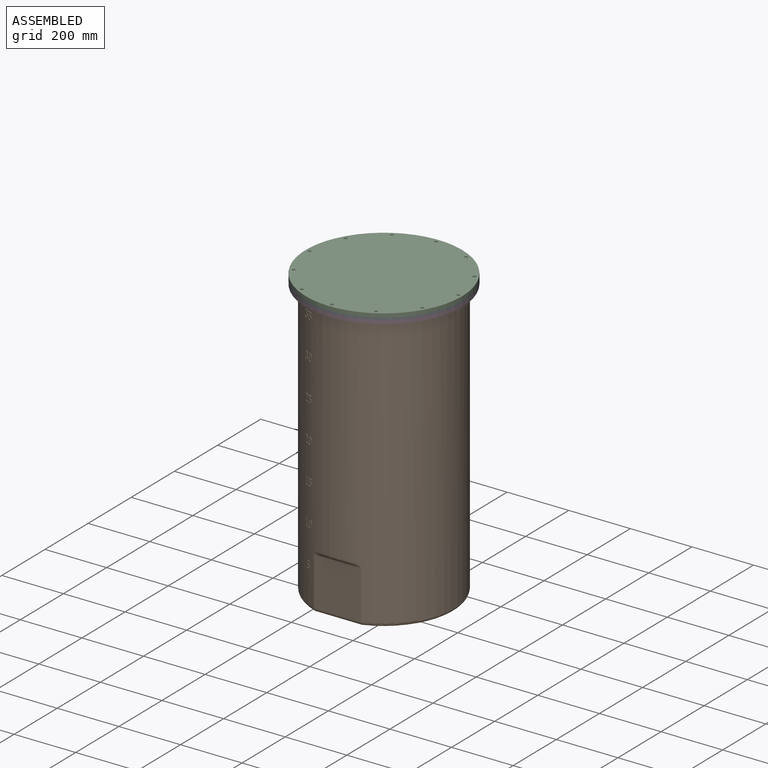
[diagram: assembled view]
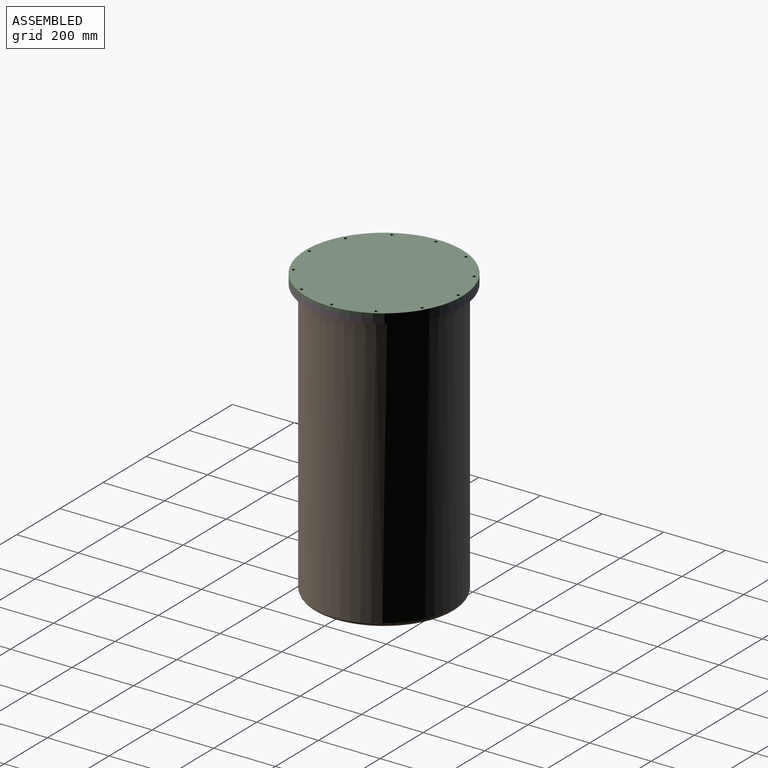
[diagram: assembled view, second angle]
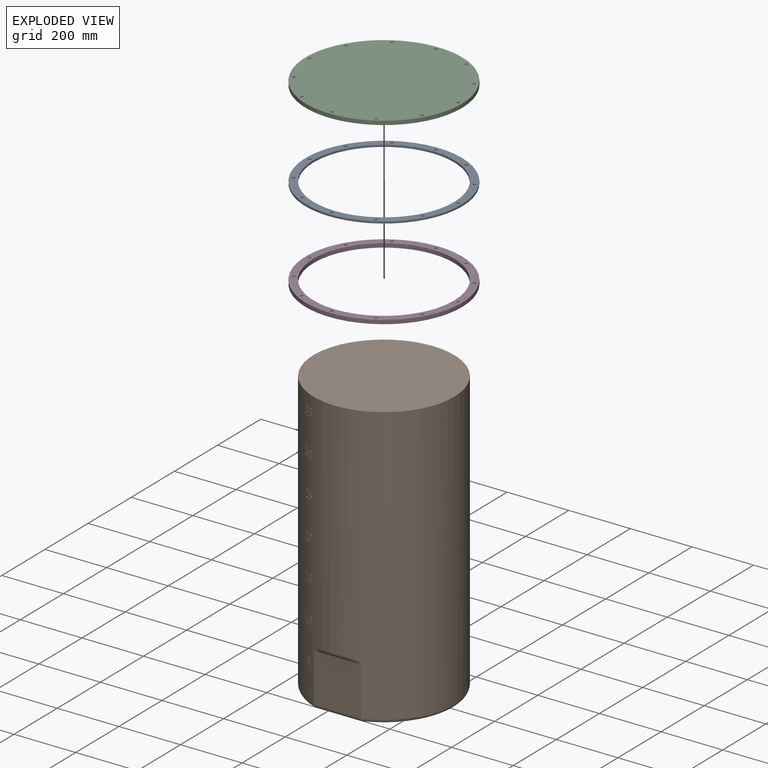
[diagram: exploded view]
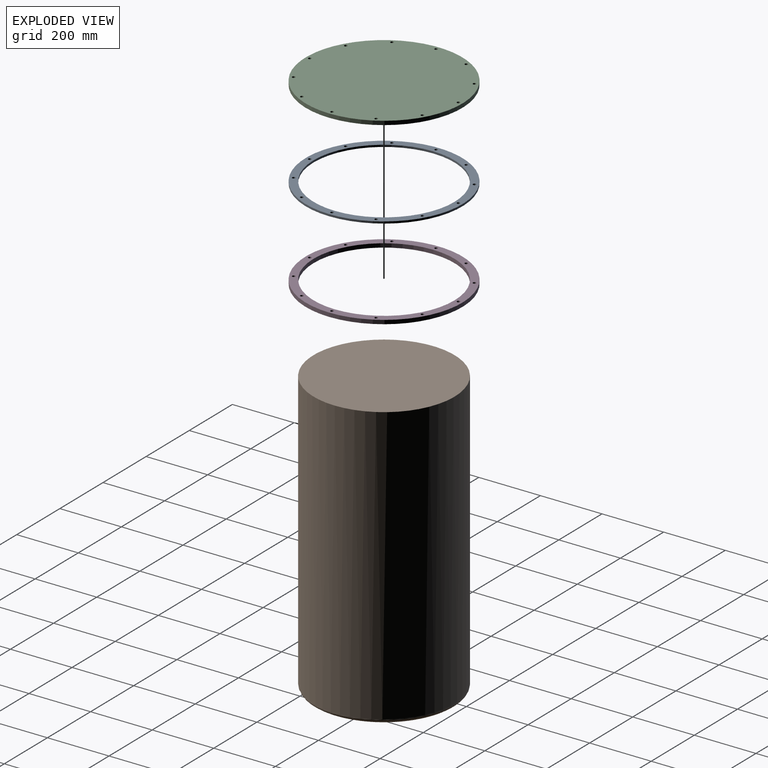
[diagram: exploded view, second angle]
ASSEMBLY  parts=4 mates=3
PART A: 16 faces, bbox 508x508x6.4 mm
  f0: cylinder r=228.6mm len=457.2mm, axis (0,0,-1), area 9120.7mm2, adj f14,f15
  f1: cylinder r=5.04mm len=10.08mm, axis (0,0,-1), area 201.2mm2, adj f14,f15
  f2: cylinder r=5.04mm len=10.08mm, axis (0,0,-1), area 201.2mm2, adj f14,f15
  f3: cylinder r=5.04mm len=10.08mm, axis (0,0,-1), area 201.2mm2, adj f14,f15
  f4: cylinder r=5.04mm len=10.08mm, axis (0,0,-1), area 201.2mm2, adj f14,f15
  f5: cylinder r=5.04mm len=10.08mm, axis (0,0,-1), area 201.2mm2, adj f14,f15
  f6: cylinder r=5.04mm len=10.08mm, axis (0,0,-1), area 201.2mm2, adj f14,f15
  f7: cylinder r=5.04mm len=10.08mm, axis (0,0,-1), area 201.2mm2, adj f14,f15
  f8: cylinder r=5.04mm len=10.08mm, axis (0,0,-1), area 201.2mm2, adj f14,f15
  f9: cylinder r=5.04mm len=10.08mm, axis (0,0,-1), area 201.2mm2, adj f14,f15
  f10: cylinder r=5.04mm len=10.08mm, axis (0,0,-1), area 201.2mm2, adj f14,f15
  f11: cylinder r=5.04mm len=10.08mm, axis (0,0,-1), area 201.2mm2, adj f14,f15
  f12: cylinder r=5.04mm len=10.08mm, axis (0,0,-1), area 201.2mm2, adj f14,f15
  f13: cylinder r=254mm len=508mm, axis (0,0,-1), area 10134.1mm2, adj f14,f15
  f14: plane 508x508mm, normal (0,0,1), area 37551.4mm2, adj f0,f1,f2,f3,f4,f5,f6,f7
  f15: plane 508x508mm, normal (0,0,-1), area 37551.4mm2, adj f0,f1,f2,f3,f4,f5,f6,f7
PART B: 269 faces, bbox 480.1x480.1x914.4 mm
  f0: cylinder r=228.6mm len=901.7mm, axis (0,0,-1), area 1238322.5mm2, adj f1,f3,f4,f5,f6,f7,f8,f9
  f1: plane 1.66x1.61mm, normal (0,0,1), area 1.4mm2, adj f0,f2,f3,f28
  f2: cylinder r=229.87mm len=26.47mm, axis (0,0,-1), area 160mm2, adj f1,f3,f4,f5,f6,f7,f8,f9
  f3: plane 2.82x1.11mm, normal (-0.87,0.49,0), area 3.6mm2, adj f0,f1,f2,f4
  f4: plane 1.88x1.81mm, normal (0,0,-1), area 1.8mm2, adj f0,f2,f3,f5
  f5: bspline ~3.98x2.95mm, area 5.1mm2, adj f0,f2,f4,f6
  f6: bspline ~3.68x1.94mm, area 5.3mm2, adj f0,f2,f5,f7
  f7: bspline ~3.95x1.84mm, area 5.5mm2, adj f0,f2,f6,f8
  f8: bspline ~4x2.96mm, area 5.4mm2, adj f0,f2,f7,f9
  f9: bspline ~6.27x4.34mm, area 8.9mm2, adj f0,f2,f8,f10
  f10: plane 1.22x0.86mm, normal (0,0,1), area 0.3mm2, adj f0,f2,f9,f11
  f11: plane 3.62x1.11mm, normal (-0.86,0.51,0), area 4.6mm2, adj f0,f2,f10,f12
  f12: cylinder r=16.81mm len=6.7mm, axis (-0.51,-0.86,0), area 9.1mm2, adj f0,f2,f11,f13
  f13: bspline ~6.13x4.09mm, area 8.7mm2, adj f0,f2,f12,f14
  f14: cylinder r=8.05mm len=5.75mm, axis (-0.45,-0.89,0.01), area 8mm2, adj f0,f2,f13,f15
  f15: bspline ~4.76x2.16mm, area 6.6mm2, adj f0,f2,f14,f16
  f16: bspline ~3.62x2.72mm, area 4.9mm2, adj f0,f2,f15,f17
  f17: plane 1.12x0.6mm, normal (0.88,-0.47,0), area 0.3mm2, adj f0,f2,f16,f18
  f18: bspline ~5.68x4.76mm, area 10.1mm2, adj f0,f2,f17,f19
  f19: bspline ~4.69x2.61mm, area 6.9mm2, adj f0,f2,f18,f20
  f20: bspline ~5.33x3.66mm, area 7.2mm2, adj f0,f2,f19,f21
  f21: bspline ~6.4x4.4mm, area 8.7mm2, adj f0,f2,f20,f22
  f22: plane 3.6x1.09mm, normal (-0.86,0.51,0), area 4.6mm2, adj f0,f2,f21,f23
  f23: plane 1.21x0.83mm, normal (0,0,-1), area 0.3mm2, adj f0,f2,f22,f24
  f24: cylinder r=13.14mm len=2.86mm, axis (-0.52,-0.85,-0.01), area 3.7mm2, adj f0,f2,f23,f25
  f25: bspline ~3.81x2.9mm, area 4.8mm2, adj f0,f2,f24,f26
  f26: bspline ~3.33x2.6mm, area 4.1mm2, adj f0,f2,f25,f27
  f27: bspline ~2.76x1.78mm, area 4.1mm2, adj f0,f2,f26,f28
  f28: bspline ~5.16x4.26mm, area 9.6mm2, adj f0,f1,f2,f27
  f29: bspline ~13.24x7.99mm, area 22.3mm2, adj f0,f30,f40,f42
  f30: cylinder r=229.87mm len=26.45mm, axis (0,0,-1), area 211.3mm2, adj f29,f31,f33,f34,f35,f36,f37,f38
  f31: bspline ~3.93x2.66mm, area 6.2mm2, adj f30,f32,f33,f39
  f32: cylinder r=228.6mm len=20.81mm, axis (0,0,-1), area 150.4mm2, adj f31,f33,f34,f35,f36,f37,f38,f39
  f33: bspline ~3.98x2.73mm, area 6.3mm2, adj f30,f31,f32,f34
  f34: bspline ~7.74x1.53mm, area 9.9mm2, adj f30,f32,f33,f35
  f35: bspline ~7.66x1.52mm, area 9.8mm2, adj f30,f32,f34,f36
  f36: bspline ~4x2.74mm, area 6.4mm2, adj f30,f32,f35,f37
  f37: bspline ~3.95x2.68mm, area 6.3mm2, adj f30,f32,f36,f38
  f38: bspline ~7.74x1.52mm, area 9.9mm2, adj f30,f32,f37,f39
  f39: bspline ~7.76x1.53mm, area 10mm2, adj f30,f31,f32,f38
  f40: bspline ~13.21x7.99mm, area 22.2mm2, adj f0,f29,f30,f41
  f41: bspline ~13.24x7.93mm, area 22.2mm2, adj f0,f30,f40,f42
  f42: bspline ~13.21x7.93mm, area 22.5mm2, adj f0,f29,f30,f41
  f43: plane 6.78x1.16mm, normal (0.91,-0.42,0), area 8.6mm2, adj f0,f44,f45,f63
  f44: cylinder r=229.87mm len=25.94mm, axis (0,0,-1), area 173mm2, adj f43,f45,f46,f47,f48,f49,f50,f51
  f45: plane 10.31x5.42mm, normal (0,0,-1), area 13.6mm2, adj f0,f43,f44,f46
  f46: plane 2.98x1.18mm, normal (0.93,-0.38,0), area 3.8mm2, adj f0,f44,f45,f47
  f47: plane 13.29x6.82mm, normal (0,0,1), area 17.7mm2, adj f0,f44,f46,f48
  f48: plane 13.09x1.15mm, normal (-0.9,0.43,0), area 16.6mm2, adj f0,f44,f47,f49
  f49: bspline ~5.1x3.28mm, area 6.5mm2, adj f0,f44,f48,f50
  f50: bspline ~4.33x2.85mm, area 5.6mm2, adj f0,f44,f49,f51
  f51: bspline ~3.66x1.83mm, area 5.2mm2, adj f0,f44,f50,f52
  f52: bspline ~4.14x1.69mm, area 5.6mm2, adj f0,f44,f51,f53
  f53: bspline ~3.87x2.64mm, area 5.2mm2, adj f0,f44,f52,f54
  f54: bspline ~3.93x2.71mm, area 4.9mm2, adj f0,f44,f53,f55
  f55: bspline ~3.02x2.33mm, area 3.9mm2, adj f0,f44,f54,f56
  f56: plane 1.25x0.78mm, normal (0,0,1), area 0.3mm2, adj f0,f44,f55,f57
  f57: plane 3.6x1.14mm, normal (-0.9,0.44,0), area 4.6mm2, adj f0,f44,f56,f58
  f58: bspline ~6.58x3.97mm, area 8.7mm2, adj f0,f44,f57,f59
  f59: bspline ~6.24x3.65mm, area 8.8mm2, adj f0,f44,f58,f60
  f60: bspline ~6.11x2.56mm, area 8.5mm2, adj f0,f44,f59,f61
  f61: bspline ~6.13x2.91mm, area 8.8mm2, adj f0,f44,f60,f62
  f62: bspline ~5.92x3.52mm, area 7.9mm2, adj f0,f44,f61,f63
  f63: cylinder r=17.89mm len=2.64mm, axis (-0.42,-0.91,0), area 2.9mm2, adj f0,f43,f44,f62
  f64: bspline ~4.34x3.6mm, area 7mm2, adj f0,f65,f66,f81
  f65: cylinder r=229.87mm len=25.94mm, axis (0,0,-1), area 158.1mm2, adj f64,f66,f67,f68,f69,f70,f71,f72
  f66: cylinder r=9.88mm len=5.11mm, axis (-0.45,-0.89,0.01), area 6.8mm2, adj f0,f64,f65,f67
  f67: bspline ~7.31x6.98mm, area 14.8mm2, adj f0,f65,f66,f68
  f68: bspline ~6.29x4.34mm, area 8.6mm2, adj f0,f65,f67,f69
  f69: plane 3.62x1.09mm, normal (-0.86,0.51,0), area 4.6mm2, adj f0,f65,f68,f70
  f70: plane 1.2x0.82mm, normal (0,0,-1), area 0.2mm2, adj f0,f65,f69,f71
  f71: cylinder r=12.92mm len=2.82mm, axis (-0.52,-0.85,-0.01), area 3.6mm2, adj f0,f65,f70,f72
  f72: bspline ~3.77x2.88mm, area 4.7mm2, adj f0,f65,f71,f73
  f73: bspline ~3.34x2.61mm, area 4.3mm2, adj f0,f65,f72,f74
  f74: bspline ~3.19x1.71mm, area 4.5mm2, adj f0,f65,f73,f75
  f75: bspline ~9.06x5.04mm, area 13.5mm2, adj f0,f65,f74,f76
  f76: bspline ~6.11x5.96mm, area 11mm2, adj f0,f65,f75,f77
  f77: plane 3.6x1.09mm, normal (-0.86,0.51,0), area 4.6mm2, adj f0,f65,f76,f78
  f78: plane 14.38x8.67mm, normal (0,0,-1), area 19.9mm2, adj f0,f65,f77,f79
  f79: plane 2.94x1.13mm, normal (0.89,-0.45,0), area 3.7mm2, adj f0,f65,f78,f80
  f80: plane 11.61x7.06mm, normal (0,0,1), area 15.9mm2, adj f0,f65,f79,f81
  f81: bspline ~6.59x6.5mm, area 12mm2, adj f0,f64,f65,f80
  f82: plane 2.93x2.38mm, normal (0,0,1), area 3.4mm2, adj f0,f83,f84,f93
  f83: cylinder r=229.87mm len=25.48mm, axis (0,0,-1), area 119.1mm2, adj f82,f84,f85,f86,f87,f88,f89,f90
  f84: bspline ~5.2x3.7mm, area 9.2mm2, adj f0,f82,f83,f85
  f85: plane 2.33x1.1mm, normal (-0.86,0.5,0), area 3mm2, adj f0,f83,f84,f86
  f86: plane 4.65x3.39mm, normal (0,0,-1), area 5.9mm2, adj f0,f83,f85,f87
  f87: plane 17.02x1.11mm, normal (-0.87,0.49,0), area 21.6mm2, adj f0,f83,f86,f88
  f88: plane 4.65x3.39mm, normal (0,0,1), area 5.9mm2, adj f0,f83,f87,f89
  f89: plane 2.59x1.1mm, normal (-0.86,0.5,0), area 3.3mm2, adj f0,f83,f88,f90
  f90: plane 11.51x7.08mm, normal (0,0,-1), area 15.8mm2, adj f0,f83,f89,f91
  f91: plane 2.59x1.13mm, normal (0.89,-0.46,0), area 3.3mm2, adj f0,f83,f90,f92
  f92: plane 4.59x3.23mm, normal (0,0,1), area 5.7mm2, adj f0,f83,f91,f93
  f93: plane 22.89x1.12mm, normal (0.88,-0.47,0), area 29.1mm2, adj f0,f82,f83,f92
  f94: bspline ~13.24x7.99mm, area 22.3mm2, adj f0,f95,f105,f107
  f95: cylinder r=229.87mm len=26.45mm, axis (0,0,-1), area 211.3mm2, adj f94,f96,f98,f99,f100,f101,f102,f103
  f96: bspline ~3.93x2.66mm, area 6.2mm2, adj f95,f97,f98,f104
  f97: cylinder r=228.6mm len=20.81mm, axis (0,0,-1), area 150.4mm2, adj f96,f98,f99,f100,f101,f102,f103,f104
  f98: bspline ~3.98x2.73mm, area 6.3mm2, adj f95,f96,f97,f99
  f99: bspline ~7.74x1.53mm, area 9.9mm2, adj f95,f97,f98,f100
  f100: bspline ~7.66x1.52mm, area 9.8mm2, adj f95,f97,f99,f101
  f101: bspline ~4x2.74mm, area 6.4mm2, adj f95,f97,f100,f102
  f102: bspline ~3.95x2.68mm, area 6.3mm2, adj f95,f97,f101,f103
  f103: bspline ~7.74x1.52mm, area 9.9mm2, adj f95,f97,f102,f104
  f104: bspline ~7.76x1.53mm, area 10mm2, adj f95,f96,f97,f103
  f105: bspline ~13.21x7.99mm, area 22.2mm2, adj f0,f94,f95,f106
  f106: bspline ~13.24x7.93mm, area 22.2mm2, adj f0,f95,f105,f107
  f107: bspline ~13.21x7.93mm, area 22.5mm2, adj f0,f94,f95,f106
  f108: plane 6.78x1.13mm, normal (0.89,-0.45,0), area 8.6mm2, adj f0,f109,f110,f128
  f109: cylinder r=229.87mm len=25.94mm, axis (0,0,-1), area 173mm2, adj f108,f110,f111,f112,f113,f114,f115,f116
  f110: plane 10.18x5.78mm, normal (0,0,-1), area 13.6mm2, adj f0,f108,f109,f111
  f111: plane 2.98x1.16mm, normal (0.91,-0.41,0), area 3.8mm2, adj f0,f109,f110,f112
  f112: plane 13.1x7.29mm, normal (0,0,1), area 17.7mm2, adj f0,f109,f111,f113
  f113: plane 13.09x1.12mm, normal (-0.88,0.47,0), area 16.6mm2, adj f0,f109,f112,f114
  f114: bspline ~5.06x3.43mm, area 6.5mm2, adj f0,f109,f113,f115
  f115: bspline ~4.3x2.97mm, area 5.6mm2, adj f0,f109,f114,f116
  f116: bspline ~3.66x1.85mm, area 5.2mm2, adj f0,f109,f115,f117
  f117: bspline ~4.14x1.72mm, area 5.6mm2, adj f0,f109,f116,f118
  f118: bspline ~3.86x2.75mm, area 5.2mm2, adj f0,f109,f117,f119
  f119: bspline ~3.91x2.82mm, area 4.9mm2, adj f0,f109,f118,f120
  f120: bspline ~3.02x2.4mm, area 3.9mm2, adj f0,f109,f119,f121
  f121: plane 1.24x0.82mm, normal (0,0,1), area 0.3mm2, adj f0,f109,f120,f122
  f122: plane 3.6x1.12mm, normal (-0.88,0.47,0), area 4.6mm2, adj f0,f109,f121,f123
  f123: bspline ~6.51x4.18mm, area 8.7mm2, adj f0,f109,f122,f124
  f124: bspline ~6.19x3.85mm, area 8.8mm2, adj f0,f109,f123,f125
  f125: bspline ~6.11x2.57mm, area 8.5mm2, adj f0,f109,f124,f126
  f126: bspline ~6.13x2.91mm, area 8.8mm2, adj f0,f109,f125,f127
  f127: bspline ~5.87x3.71mm, area 7.9mm2, adj f0,f109,f126,f128
  f128: cylinder r=17.89mm len=2.65mm, axis (-0.45,-0.89,0), area 2.9mm2, adj f0,f108,f109,f127
  f129: plane 2.93x2.38mm, normal (0,0,1), area 3.4mm2, adj f0,f130,f131,f140
  f130: cylinder r=229.87mm len=25.48mm, axis (0,0,-1), area 119.1mm2, adj f129,f131,f132,f133,f134,f135,f136,f137
  f131: bspline ~5.2x3.7mm, area 9.2mm2, adj f0,f129,f130,f132
  f132: plane 2.33x1.1mm, normal (-0.86,0.5,0), area 3mm2, adj f0,f130,f131,f133
  f133: plane 4.65x3.39mm, normal (0,0,-1), area 5.9mm2, adj f0,f130,f132,f134
  f134: plane 17.02x1.11mm, normal (-0.87,0.49,0), area 21.6mm2, adj f0,f130,f133,f135
  f135: plane 4.65x3.39mm, normal (0,0,1), area 5.9mm2, adj f0,f130,f134,f136
  f136: plane 2.59x1.1mm, normal (-0.86,0.5,0), area 3.3mm2, adj f0,f130,f135,f137
  f137: plane 11.51x7.08mm, normal (0,0,-1), area 15.8mm2, adj f0,f130,f136,f138
  f138: plane 2.59x1.13mm, normal (0.89,-0.46,0), area 3.3mm2, adj f0,f130,f137,f139
  f139: plane 4.59x3.23mm, normal (0,0,1), area 5.7mm2, adj f0,f130,f138,f140
  f140: plane 22.89x1.12mm, normal (0.88,-0.47,0), area 29.1mm2, adj f0,f129,f130,f139
  f141: plane 6.78x1.16mm, normal (0.91,-0.42,0), area 8.6mm2, adj f0,f142,f143,f161
  f142: cylinder r=229.87mm len=25.94mm, axis (0,0,-1), area 173mm2, adj f141,f143,f144,f145,f146,f147,f148,f149
  f143: plane 10.31x5.42mm, normal (0,0,-1), area 13.6mm2, adj f0,f141,f142,f144
  f144: plane 2.98x1.18mm, normal (0.93,-0.38,0), area 3.8mm2, adj f0,f142,f143,f145
  f145: plane 13.29x6.82mm, normal (0,0,1), area 17.7mm2, adj f0,f142,f144,f146
  f146: plane 13.09x1.15mm, normal (-0.9,0.43,0), area 16.6mm2, adj f0,f142,f145,f147
  f147: bspline ~5.1x3.28mm, area 6.5mm2, adj f0,f142,f146,f148
  f148: bspline ~4.33x2.85mm, area 5.6mm2, adj f0,f142,f147,f149
  f149: bspline ~3.66x1.83mm, area 5.2mm2, adj f0,f142,f148,f150
  f150: bspline ~4.14x1.69mm, area 5.6mm2, adj f0,f142,f149,f151
  f151: bspline ~3.87x2.64mm, area 5.2mm2, adj f0,f142,f150,f152
  f152: bspline ~3.93x2.71mm, area 4.9mm2, adj f0,f142,f151,f153
  f153: bspline ~3.02x2.33mm, area 3.9mm2, adj f0,f142,f152,f154
  f154: plane 1.25x0.78mm, normal (0,0,1), area 0.3mm2, adj f0,f142,f153,f155
  f155: plane 3.6x1.14mm, normal (-0.9,0.44,0), area 4.6mm2, adj f0,f142,f154,f156
  f156: bspline ~6.58x3.97mm, area 8.7mm2, adj f0,f142,f155,f157
  f157: bspline ~6.24x3.65mm, area 8.8mm2, adj f0,f142,f156,f158
  f158: bspline ~6.11x2.56mm, area 8.5mm2, adj f0,f142,f157,f159
  f159: bspline ~6.13x2.91mm, area 8.8mm2, adj f0,f142,f158,f160
  f160: bspline ~5.92x3.52mm, area 7.9mm2, adj f0,f142,f159,f161
  f161: cylinder r=17.89mm len=2.64mm, axis (-0.42,-0.91,0), area 2.9mm2, adj f0,f141,f142,f160
  f162: bspline ~13.24x7.99mm, area 22.3mm2, adj f0,f163,f173,f175
  f163: cylinder r=229.87mm len=26.45mm, axis (0,0,-1), area 211.3mm2, adj f162,f164,f166,f167,f168,f169,f170,f171
  f164: bspline ~3.93x2.66mm, area 6.2mm2, adj f163,f165,f166,f172
  f165: cylinder r=228.6mm len=20.81mm, axis (0,0,-1), area 150.4mm2, adj f164,f166,f167,f168,f169,f170,f171,f172
  f166: bspline ~3.98x2.73mm, area 6.3mm2, adj f163,f164,f165,f167
  f167: bspline ~7.74x1.53mm, area 9.9mm2, adj f163,f165,f166,f168
  f168: bspline ~7.66x1.52mm, area 9.8mm2, adj f163,f165,f167,f169
  f169: bspline ~4x2.74mm, area 6.4mm2, adj f163,f165,f168,f170
  f170: bspline ~3.95x2.68mm, area 6.3mm2, adj f163,f165,f169,f171
  f171: bspline ~7.74x1.52mm, area 9.9mm2, adj f163,f165,f170,f172
  f172: bspline ~7.76x1.53mm, area 10mm2, adj f163,f164,f165,f171
  f173: bspline ~13.21x7.99mm, area 22.2mm2, adj f0,f162,f163,f174
  f174: bspline ~13.24x7.93mm, area 22.2mm2, adj f0,f163,f173,f175
  f175: bspline ~13.21x7.93mm, area 22.5mm2, adj f0,f162,f163,f174
  f176: bspline ~4.34x3.6mm, area 7mm2, adj f0,f177,f178,f193
  f177: cylinder r=229.87mm len=25.94mm, axis (0,0,-1), area 158.1mm2, adj f176,f178,f179,f180,f181,f182,f183,f184
  f178: cylinder r=9.88mm len=5.11mm, axis (-0.45,-0.89,0.01), area 6.8mm2, adj f0,f176,f177,f179
  f179: bspline ~7.31x6.98mm, area 14.8mm2, adj f0,f177,f178,f180
  f180: bspline ~6.29x4.34mm, area 8.6mm2, adj f0,f177,f179,f181
  f181: plane 3.62x1.09mm, normal (-0.86,0.51,0), area 4.6mm2, adj f0,f177,f180,f182
  f182: plane 1.2x0.82mm, normal (0,0,-1), area 0.2mm2, adj f0,f177,f181,f183
  f183: cylinder r=12.92mm len=2.82mm, axis (-0.52,-0.85,-0.01), area 3.6mm2, adj f0,f177,f182,f184
  f184: bspline ~3.77x2.88mm, area 4.7mm2, adj f0,f177,f183,f185
  f185: bspline ~3.34x2.61mm, area 4.3mm2, adj f0,f177,f184,f186
  f186: bspline ~3.19x1.71mm, area 4.5mm2, adj f0,f177,f185,f187
  f187: bspline ~9.06x5.04mm, area 13.5mm2, adj f0,f177,f186,f188
  f188: bspline ~6.11x5.96mm, area 11mm2, adj f0,f177,f187,f189
  f189: plane 3.6x1.09mm, normal (-0.86,0.51,0), area 4.6mm2, adj f0,f177,f188,f190
  f190: plane 14.38x8.67mm, normal (0,0,-1), area 19.9mm2, adj f0,f177,f189,f191
  f191: plane 2.94x1.13mm, normal (0.89,-0.45,0), area 3.7mm2, adj f0,f177,f190,f192
  f192: plane 11.61x7.06mm, normal (0,0,1), area 15.9mm2, adj f0,f177,f191,f193
  f193: bspline ~6.59x6.5mm, area 12mm2, adj f0,f176,f177,f192
  f194: plane 1.66x1.61mm, normal (0,0,1), area 1.4mm2, adj f0,f195,f196,f221
  f195: cylinder r=229.87mm len=26.47mm, axis (0,0,-1), area 160.1mm2, adj f194,f196,f197,f198,f199,f200,f201,f202
  f196: plane 2.82x1.11mm, normal (-0.87,0.49,0), area 3.6mm2, adj f0,f194,f195,f197
  f197: plane 1.88x1.81mm, normal (0,0,-1), area 1.8mm2, adj f0,f195,f196,f198
  f198: bspline ~3.98x2.95mm, area 5.1mm2, adj f0,f195,f197,f199
  f199: bspline ~3.68x1.94mm, area 5.3mm2, adj f0,f195,f198,f200
  f200: bspline ~3.95x1.84mm, area 5.5mm2, adj f0,f195,f199,f201
  f201: bspline ~4x2.96mm, area 5.4mm2, adj f0,f195,f200,f202
  f202: bspline ~6.27x4.34mm, area 8.9mm2, adj f0,f195,f201,f203
  f203: plane 1.22x0.86mm, normal (0,0,1), area 0.3mm2, adj f0,f195,f202,f204
  f204: plane 3.62x1.11mm, normal (-0.86,0.51,0), area 4.6mm2, adj f0,f195,f203,f205
  f205: cylinder r=16.81mm len=6.7mm, axis (-0.51,-0.86,0), area 9.1mm2, adj f0,f195,f204,f206
  f206: bspline ~6.13x4.09mm, area 8.7mm2, adj f0,f195,f205,f207
  f207: cylinder r=8.05mm len=5.75mm, axis (-0.45,-0.89,0.01), area 8mm2, adj f0,f195,f206,f208
  f208: bspline ~4.69x2.16mm, area 6.6mm2, adj f0,f195,f207,f209
  f209: bspline ~3.62x2.72mm, area 4.9mm2, adj f0,f195,f208,f210
  f210: plane 1.12x0.6mm, normal (0.88,-0.47,0), area 0.3mm2, adj f0,f195,f209,f211
  f211: bspline ~5.68x4.76mm, area 10.1mm2, adj f0,f195,f210,f212
  f212: bspline ~4.69x2.61mm, area 6.9mm2, adj f0,f195,f211,f213
  f213: bspline ~5.33x3.66mm, area 7.2mm2, adj f0,f195,f212,f214
  f214: bspline ~6.4x4.4mm, area 8.7mm2, adj f0,f195,f213,f215
  f215: plane 3.6x1.09mm, normal (-0.86,0.51,0), area 4.6mm2, adj f0,f195,f214,f216
  f216: plane 1.21x0.83mm, normal (0,0,-1), area 0.3mm2, adj f0,f195,f215,f217
  f217: cylinder r=13.14mm len=2.86mm, axis (-0.52,-0.85,-0.01), area 3.7mm2, adj f0,f195,f216,f218
  f218: bspline ~3.81x2.9mm, area 4.8mm2, adj f0,f195,f217,f219
  f219: bspline ~3.33x2.6mm, area 4.1mm2, adj f0,f195,f218,f220
  f220: bspline ~2.76x1.78mm, area 4.1mm2, adj f0,f195,f219,f221
  f221: bspline ~5.16x4.26mm, area 9.6mm2, adj f0,f194,f195,f220
  f222: plane 6.78x1.16mm, normal (0.91,-0.42,0), area 8.6mm2, adj f0,f223,f224,f242
  f223: cylinder r=229.87mm len=25.94mm, axis (0,0,-1), area 173mm2, adj f222,f224,f225,f226,f227,f228,f229,f230
  f224: plane 10.31x5.42mm, normal (0,0,-1), area 13.6mm2, adj f0,f222,f223,f225
  f225: plane 2.98x1.18mm, normal (0.93,-0.38,0), area 3.8mm2, adj f0,f223,f224,f226
  f226: plane 13.29x6.82mm, normal (0,0,1), area 17.7mm2, adj f0,f223,f225,f227
  f227: plane 13.09x1.15mm, normal (-0.9,0.43,0), area 16.6mm2, adj f0,f223,f226,f228
  f228: bspline ~5.1x3.28mm, area 6.5mm2, adj f0,f223,f227,f229
  f229: bspline ~4.33x2.85mm, area 5.6mm2, adj f0,f223,f228,f230
  f230: bspline ~3.66x1.83mm, area 5.2mm2, adj f0,f223,f229,f231
  f231: bspline ~4.14x1.69mm, area 5.6mm2, adj f0,f223,f230,f232
  f232: bspline ~3.87x2.64mm, area 5.2mm2, adj f0,f223,f231,f233
  f233: bspline ~3.93x2.71mm, area 4.9mm2, adj f0,f223,f232,f234
  f234: bspline ~3.02x2.33mm, area 3.9mm2, adj f0,f223,f233,f235
  f235: plane 1.25x0.78mm, normal (0,0,1), area 0.3mm2, adj f0,f223,f234,f236
  f236: plane 3.6x1.14mm, normal (-0.9,0.44,0), area 4.6mm2, adj f0,f223,f235,f237
  f237: bspline ~6.58x3.97mm, area 8.7mm2, adj f0,f223,f236,f238
  f238: bspline ~6.24x3.65mm, area 8.8mm2, adj f0,f223,f237,f239
  f239: bspline ~6.11x2.56mm, area 8.5mm2, adj f0,f223,f238,f240
  f240: bspline ~6.13x2.91mm, area 8.8mm2, adj f0,f223,f239,f241
  f241: bspline ~5.92x3.52mm, area 7.9mm2, adj f0,f223,f240,f242
  f242: cylinder r=17.89mm len=2.64mm, axis (-0.42,-0.91,0), area 2.9mm2, adj f0,f222,f223,f241
  f243: cylinder r=9.53mm len=155.58mm, axis (0,0,-1), area 514.5mm2, adj f0,f244,f256,f257
  f244: plane 155.58x149.1mm, normal (0,-1,0), area 23195.6mm2, adj f243,f245,f246,f247,f261
  f245: cylinder r=9.53mm len=47.68mm, axis (-1,0,0), area 235.6mm2, adj f244,f258,f260
  f246: cylinder r=9.53mm len=101.42mm, axis (-1,0,0), area 850.7mm2, adj f244,f257,f258
  f247: cylinder r=12.7mm len=149.1mm, axis (-1,0,0), area 2963.2mm2, adj f244,f248,f255,f256
  f248: plane 418.73x418.73mm, normal (0,0,-1), area 143842.9mm2, adj f247,f249,f262,f268
  f249: cylinder r=12.7mm len=149.1mm, axis (0,1,0), area 2963.2mm2, adj f248,f250,f253,f254
  f250: plane 155.58x149.1mm, normal (-1,0,0), area 23195.6mm2, adj f249,f251,f252,f263,f267
  f251: cylinder r=9.53mm len=47.68mm, axis (0,1,0), area 235.6mm2, adj f250,f265,f266
  f252: cylinder r=9.53mm len=101.42mm, axis (0,1,0), area 850.7mm2, adj f250,f264,f265
  f253: bspline ~12.71x12.7mm, area 27mm2, adj f249,f262,f263
  f254: bspline ~12.71x12.7mm, area 27mm2, adj f249,f267,f268
  f255: bspline ~12.71x12.7mm, area 27mm2, adj f247,f261,f262
  f256: bspline ~12.71x12.7mm, area 27mm2, adj f243,f247,f268
  f257: bspline ~37.67x16.41mm, area 280.7mm2, adj f0,f243,f246,f258
  f258: bspline ~83.74x9.96mm, area 930.5mm2, adj f0,f245,f246,f257,f260
  f259: plane 457.2x457.2mm, normal (0,0,1), area 164173.2mm2, adj f0
  f260: bspline ~37.67x16.41mm, area 280.7mm2, adj f0,f245,f258,f261
  f261: cylinder r=9.53mm len=155.58mm, axis (0,0,1), area 514.5mm2, adj f0,f244,f255,f260
  f262: torus R=215.9mm, axis (0,0,-1), area 3904.5mm2, adj f0,f248,f253,f255
  f263: cylinder r=9.53mm len=155.58mm, axis (0,0,-1), area 514.5mm2, adj f0,f250,f253,f264
  f264: bspline ~37.67x16.41mm, area 280.7mm2, adj f0,f252,f263,f265
  f265: bspline ~83.74x9.88mm, area 930.5mm2, adj f0,f251,f252,f264,f266
  f266: bspline ~37.67x16.41mm, area 280.7mm2, adj f0,f251,f265,f267
  f267: cylinder r=9.53mm len=155.58mm, axis (0,0,1), area 514.5mm2, adj f0,f250,f254,f266
  f268: torus R=215.9mm, axis (0,0,-1), area 17942mm2, adj f0,f248,f254,f256
PART C: 15 faces, bbox 508x508x12.7 mm
  f0: cylinder r=5.04mm len=12.7mm, axis (0,0,-1), area 402.3mm2, adj f13,f14
  f1: cylinder r=5.04mm len=12.7mm, axis (0,0,-1), area 402.3mm2, adj f13,f14
  f2: cylinder r=5.04mm len=12.7mm, axis (0,0,-1), area 402.3mm2, adj f13,f14
  f3: cylinder r=5.04mm len=12.7mm, axis (0,0,-1), area 402.3mm2, adj f13,f14
  f4: cylinder r=5.04mm len=12.7mm, axis (0,0,-1), area 402.3mm2, adj f13,f14
  f5: cylinder r=5.04mm len=12.7mm, axis (0,0,-1), area 402.3mm2, adj f13,f14
  f6: cylinder r=5.04mm len=12.7mm, axis (0,0,-1), area 402.3mm2, adj f13,f14
  f7: cylinder r=5.04mm len=12.7mm, axis (0,0,-1), area 402.3mm2, adj f13,f14
  f8: cylinder r=5.04mm len=12.7mm, axis (0,0,-1), area 402.3mm2, adj f13,f14
  f9: cylinder r=5.04mm len=12.7mm, axis (0,0,-1), area 402.3mm2, adj f13,f14
  f10: cylinder r=5.04mm len=12.7mm, axis (0,0,-1), area 402.3mm2, adj f13,f14
  f11: cylinder r=5.04mm len=12.7mm, axis (0,0,-1), area 402.3mm2, adj f13,f14
  f12: cylinder r=254mm len=508mm, axis (0,0,-1), area 20268.3mm2, adj f13,f14
  f13: plane 508x508mm, normal (0,0,1), area 201724.7mm2, adj f0,f1,f2,f3,f4,f5,f6,f7
  f14: plane 508x508mm, normal (0,0,-1), area 201724.7mm2, adj f0,f1,f2,f3,f4,f5,f6,f7
PART D: 16 faces, bbox 508x508x12.7 mm
  f0: cylinder r=228.6mm len=457.2mm, axis (0,0,-1), area 18241.5mm2, adj f14,f15
  f1: cylinder r=5.04mm len=12.7mm, axis (0,0,-1), area 402.3mm2, adj f14,f15
  f2: cylinder r=5.04mm len=12.7mm, axis (0,0,-1), area 402.3mm2, adj f14,f15
  f3: cylinder r=5.04mm len=12.7mm, axis (0,0,-1), area 402.3mm2, adj f14,f15
  f4: cylinder r=5.04mm len=12.7mm, axis (0,0,-1), area 402.3mm2, adj f14,f15
  f5: cylinder r=5.04mm len=12.7mm, axis (0,0,-1), area 402.3mm2, adj f14,f15
  f6: cylinder r=5.04mm len=12.7mm, axis (0,0,-1), area 402.3mm2, adj f14,f15
  f7: cylinder r=5.04mm len=12.7mm, axis (0,0,-1), area 402.3mm2, adj f14,f15
  f8: cylinder r=5.04mm len=12.7mm, axis (0,0,-1), area 402.3mm2, adj f14,f15
  f9: cylinder r=5.04mm len=12.7mm, axis (0,0,-1), area 402.3mm2, adj f14,f15
  f10: cylinder r=5.04mm len=12.7mm, axis (0,0,-1), area 402.3mm2, adj f14,f15
  f11: cylinder r=5.04mm len=12.7mm, axis (0,0,-1), area 402.3mm2, adj f14,f15
  f12: cylinder r=5.04mm len=12.7mm, axis (0,0,-1), area 402.3mm2, adj f14,f15
  f13: cylinder r=254mm len=508mm, axis (0,0,-1), area 20268.3mm2, adj f14,f15
  f14: plane 508x508mm, normal (0,0,1), area 37551.4mm2, adj f0,f1,f2,f3,f4,f5,f6,f7
  f15: plane 508x508mm, normal (0,0,-1), area 37551.4mm2, adj f0,f1,f2,f3,f4,f5,f6,f7
PLACE A rot(axis=(1,0,0),180deg) t=(-141.55,-26.04,546.81)mm
PLACE B t=(-141.26,-26.04,-196.14)mm
PLACE C rot(axis=(1,0,0),180deg) t=(-141.74,-25.85,559.51)mm
PLACE D t=(-141.26,-26.04,527.76)mm
MATE fastened D.f0 <-> B.f0  axis (0,0,1) through (-141.26,-26.04,540.46)mm
MATE fastened A.f13 <-> B.f0  axis (0,0,-1) through (-141.26,-26.04,540.46)mm
MATE fastened C.f12 <-> A.f13  axis (0,0,-1) through (-141.26,-26.04,546.81)mm
